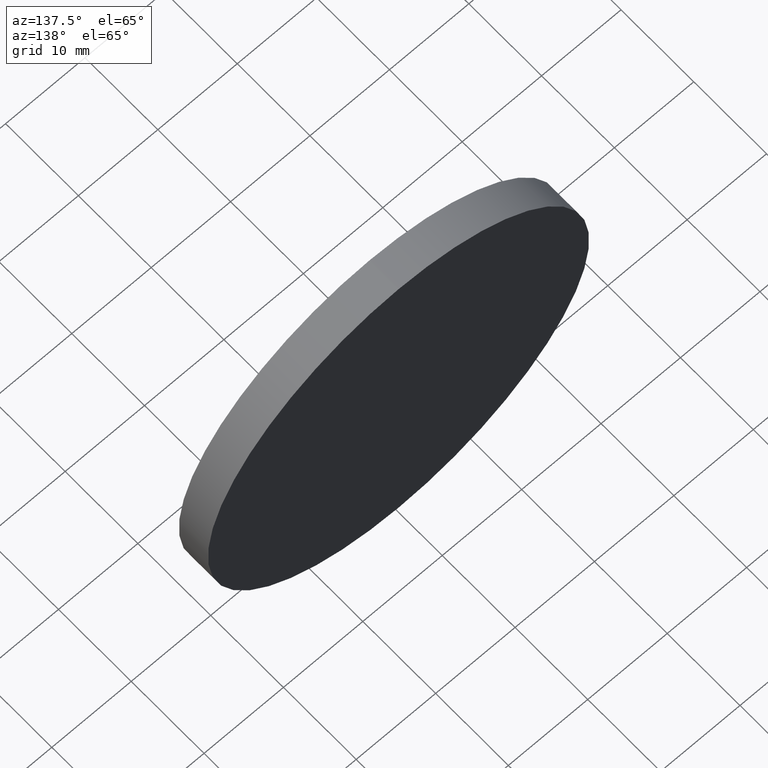
[diagram: clean part render]
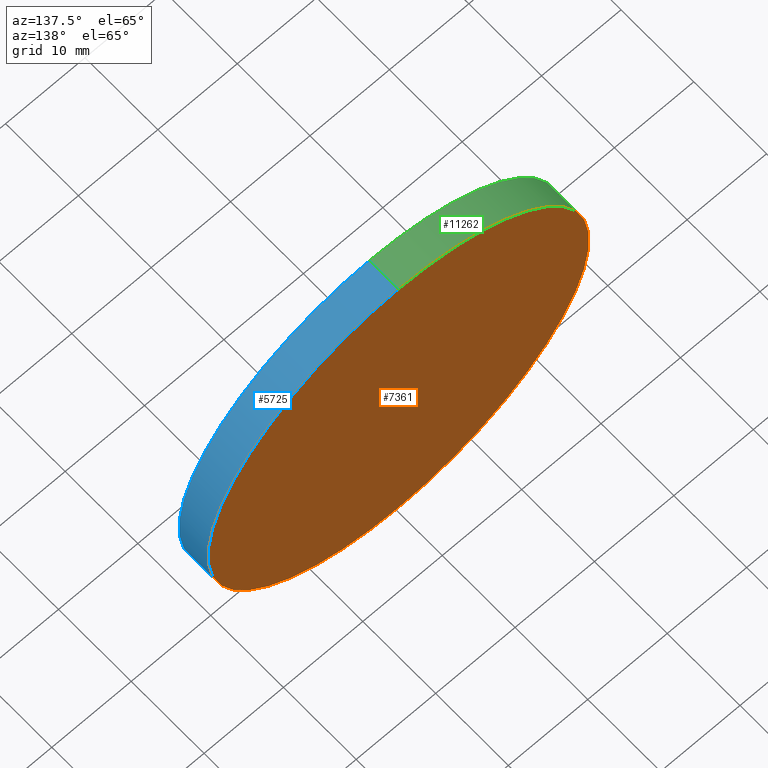
[diagram: same view with three faces highlighted in distinct colors, each labeled with its STEP entity id]
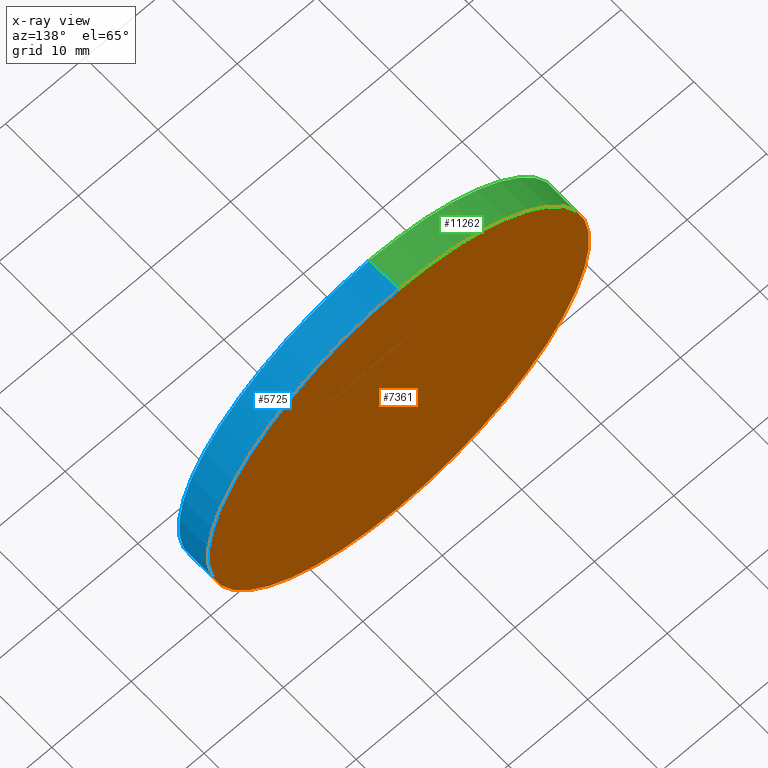
[diagram: x-ray of the same camera — body ghosted, the three highlighted faces saturated]
A machine part, auxiliary view with three faces highlighted in distinct colors.
The next image is the same camera in x-ray (body ghosted, the three faces saturated) — at least one of them is partly hidden behind the body in this view.
Their STEP definitions:

[orange] entity #7361 — the highlighted planar face has unit normal (0, 1, 0).
#288 = DIRECTION ( 'NONE',  ( 0.0000000000000000000, 1.000000000000000000, 0.0000000000000000000 ) ) ;
#672 = FACE_OUTER_BOUND ( 'NONE', #5310, .T. ) ;
#1227 = CARTESIAN_POINT ( 'NONE',  ( 0.0000000000000000000, 4.000000000000000000, 0.0000000000000000000 ) ) ;
#1413 = CIRCLE ( 'NONE', #5704, 24.00000000000000400 ) ;
#1892 = CARTESIAN_POINT ( 'NONE',  ( 0.0000000000000000000, 4.000000000000000000, -24.00000000000000400 ) ) ;
#2289 = AXIS2_PLACEMENT_3D ( 'NONE', #2824, #4774, #8815 ) ;
#2824 = CARTESIAN_POINT ( 'NONE',  ( 0.0000000000000000000, 4.000000000000000000, 0.0000000000000000000 ) ) ;
#3291 = ORIENTED_EDGE ( 'NONE', *, *, #9775, .T. ) ;
#4371 = DIRECTION ( 'NONE',  ( 0.0000000000000000000, 1.000000000000000000, 0.0000000000000000000 ) ) ;
#4774 = DIRECTION ( 'NONE',  ( 0.0000000000000000000, 1.000000000000000000, 0.0000000000000000000 ) ) ;
#5310 = EDGE_LOOP ( 'NONE', ( #5877, #3291 ) ) ;
#5426 = CIRCLE ( 'NONE', #9800, 24.00000000000000400 ) ;
#5704 = AXIS2_PLACEMENT_3D ( 'NONE', #6294, #4371, #6206 ) ;
#5877 = ORIENTED_EDGE ( 'NONE', *, *, #9333, .T. ) ;
#5981 = CARTESIAN_POINT ( 'NONE',  ( 2.939152317953648300E-015, 4.000000000000000000, 24.00000000000000400 ) ) ;
#6206 = DIRECTION ( 'NONE',  ( 0.0000000000000000000, 0.0000000000000000000, 1.000000000000000000 ) ) ;
#6294 = CARTESIAN_POINT ( 'NONE',  ( 0.0000000000000000000, 4.000000000000000000, 0.0000000000000000000 ) ) ;
#7361 = ADVANCED_FACE ( 'NONE', ( #672 ), #12796, .T. ) ;
#7615 = VERTEX_POINT ( 'NONE', #5981 ) ;
#8141 = DIRECTION ( 'NONE',  ( 0.0000000000000000000, 0.0000000000000000000, 1.000000000000000000 ) ) ;
#8815 = DIRECTION ( 'NONE',  ( 0.0000000000000000000, -0.0000000000000000000, 1.000000000000000000 ) ) ;
#9333 = EDGE_CURVE ( 'NONE', #12747, #7615, #5426, .T. ) ;
#9775 = EDGE_CURVE ( 'NONE', #7615, #12747, #1413, .T. ) ;
#9800 = AXIS2_PLACEMENT_3D ( 'NONE', #1227, #288, #8141 ) ;
#12747 = VERTEX_POINT ( 'NONE', #1892 ) ;
#12796 = PLANE ( 'NONE',  #2289 ) ;

[blue] entity #5725 — the highlighted cylindrical surface (partial cylindrical patch) has radius 24 mm, axis along (-0, -1, -0).
#28 = CARTESIAN_POINT ( 'NONE',  ( 0.0000000000000000000, 0.0000000000000000000, -24.00000000000000400 ) ) ;
#1339 = CARTESIAN_POINT ( 'NONE',  ( 0.0000000000000000000, 4.000000000000000000, -24.00000000000000400 ) ) ;
#1413 = CIRCLE ( 'NONE', #5704, 24.00000000000000400 ) ;
#1619 = EDGE_CURVE ( 'NONE', #3025, #10641, #2878, .T. ) ;
#1892 = CARTESIAN_POINT ( 'NONE',  ( 0.0000000000000000000, 4.000000000000000000, -24.00000000000000400 ) ) ;
#1897 = EDGE_LOOP ( 'NONE', ( #11427, #10269, #7255, #1920 ) ) ;
#1920 = ORIENTED_EDGE ( 'NONE', *, *, #9796, .F. ) ;
#2313 = DIRECTION ( 'NONE',  ( 0.0000000000000000000, 0.0000000000000000000, 1.000000000000000000 ) ) ;
#2878 = CIRCLE ( 'NONE', #10280, 24.00000000000000400 ) ;
#3025 = VERTEX_POINT ( 'NONE', #10613 ) ;
#3193 = DIRECTION ( 'NONE',  ( -0.0000000000000000000, -1.000000000000000000, -0.0000000000000000000 ) ) ;
#3368 = DIRECTION ( 'NONE',  ( -0.0000000000000000000, -1.000000000000000000, -0.0000000000000000000 ) ) ;
#4311 = DIRECTION ( 'NONE',  ( 0.0000000000000000000, 0.0000000000000000000, -1.000000000000000000 ) ) ;
#4371 = DIRECTION ( 'NONE',  ( 0.0000000000000000000, 1.000000000000000000, 0.0000000000000000000 ) ) ;
#4377 = EDGE_CURVE ( 'NONE', #7615, #3025, #9948, .T. ) ;
#5291 = DIRECTION ( 'NONE',  ( -0.0000000000000000000, -1.000000000000000000, -0.0000000000000000000 ) ) ;
#5704 = AXIS2_PLACEMENT_3D ( 'NONE', #6294, #4371, #6206 ) ;
#5725 = ADVANCED_FACE ( 'NONE', ( #6100 ), #12738, .T. ) ;
#5981 = CARTESIAN_POINT ( 'NONE',  ( 2.939152317953648300E-015, 4.000000000000000000, 24.00000000000000400 ) ) ;
#6100 = FACE_OUTER_BOUND ( 'NONE', #1897, .T. ) ;
#6157 = CARTESIAN_POINT ( 'NONE',  ( 2.939152317953648300E-015, 4.000000000000000000, 24.00000000000000400 ) ) ;
#6206 = DIRECTION ( 'NONE',  ( 0.0000000000000000000, 0.0000000000000000000, 1.000000000000000000 ) ) ;
#6232 = CARTESIAN_POINT ( 'NONE',  ( 0.0000000000000000000, 4.000000000000000000, 0.0000000000000000000 ) ) ;
#6255 = DIRECTION ( 'NONE',  ( 0.0000000000000000000, 1.000000000000000000, 0.0000000000000000000 ) ) ;
#6294 = CARTESIAN_POINT ( 'NONE',  ( 0.0000000000000000000, 4.000000000000000000, 0.0000000000000000000 ) ) ;
#7255 = ORIENTED_EDGE ( 'NONE', *, *, #1619, .T. ) ;
#7331 = VECTOR ( 'NONE', #3193, 1000.000000000000000 ) ;
#7615 = VERTEX_POINT ( 'NONE', #5981 ) ;
#8974 = AXIS2_PLACEMENT_3D ( 'NONE', #6232, #5291, #4311 ) ;
#9775 = EDGE_CURVE ( 'NONE', #7615, #12747, #1413, .T. ) ;
#9796 = EDGE_CURVE ( 'NONE', #12747, #10641, #11296, .T. ) ;
#9948 = LINE ( 'NONE', #6157, #7331 ) ;
#10269 = ORIENTED_EDGE ( 'NONE', *, *, #4377, .T. ) ;
#10280 = AXIS2_PLACEMENT_3D ( 'NONE', #11170, #6255, #2313 ) ;
#10613 = CARTESIAN_POINT ( 'NONE',  ( 2.939152317953648300E-015, 0.0000000000000000000, 24.00000000000000400 ) ) ;
#10641 = VERTEX_POINT ( 'NONE', #28 ) ;
#11170 = CARTESIAN_POINT ( 'NONE',  ( 0.0000000000000000000, 0.0000000000000000000, 0.0000000000000000000 ) ) ;
#11296 = LINE ( 'NONE', #1339, #12538 ) ;
#11427 = ORIENTED_EDGE ( 'NONE', *, *, #9775, .F. ) ;
#12538 = VECTOR ( 'NONE', #3368, 1000.000000000000000 ) ;
#12738 = CYLINDRICAL_SURFACE ( 'NONE', #8974, 24.00000000000000400 ) ;
#12747 = VERTEX_POINT ( 'NONE', #1892 ) ;

[green] entity #11262 — the highlighted cylindrical surface (partial cylindrical patch) has radius 24 mm, axis along (-0, -1, -0).
#28 = CARTESIAN_POINT ( 'NONE',  ( 0.0000000000000000000, 0.0000000000000000000, -24.00000000000000400 ) ) ;
#288 = DIRECTION ( 'NONE',  ( 0.0000000000000000000, 1.000000000000000000, 0.0000000000000000000 ) ) ;
#1227 = CARTESIAN_POINT ( 'NONE',  ( 0.0000000000000000000, 4.000000000000000000, 0.0000000000000000000 ) ) ;
#1296 = CIRCLE ( 'NONE', #4307, 24.00000000000000400 ) ;
#1339 = CARTESIAN_POINT ( 'NONE',  ( 0.0000000000000000000, 4.000000000000000000, -24.00000000000000400 ) ) ;
#1599 = ORIENTED_EDGE ( 'NONE', *, *, #7059, .T. ) ;
#1892 = CARTESIAN_POINT ( 'NONE',  ( 0.0000000000000000000, 4.000000000000000000, -24.00000000000000400 ) ) ;
#1904 = ORIENTED_EDGE ( 'NONE', *, *, #9796, .T. ) ;
#2179 = DIRECTION ( 'NONE',  ( 0.0000000000000000000, 0.0000000000000000000, 1.000000000000000000 ) ) ;
#3025 = VERTEX_POINT ( 'NONE', #10613 ) ;
#3193 = DIRECTION ( 'NONE',  ( -0.0000000000000000000, -1.000000000000000000, -0.0000000000000000000 ) ) ;
#3328 = DIRECTION ( 'NONE',  ( -0.0000000000000000000, -1.000000000000000000, -0.0000000000000000000 ) ) ;
#3368 = DIRECTION ( 'NONE',  ( -0.0000000000000000000, -1.000000000000000000, -0.0000000000000000000 ) ) ;
#3710 = CYLINDRICAL_SURFACE ( 'NONE', #10154, 24.00000000000000400 ) ;
#4057 = ORIENTED_EDGE ( 'NONE', *, *, #4377, .F. ) ;
#4307 = AXIS2_PLACEMENT_3D ( 'NONE', #8124, #11993, #2179 ) ;
#4362 = ORIENTED_EDGE ( 'NONE', *, *, #9333, .F. ) ;
#4377 = EDGE_CURVE ( 'NONE', #7615, #3025, #9948, .T. ) ;
#5426 = CIRCLE ( 'NONE', #9800, 24.00000000000000400 ) ;
#5981 = CARTESIAN_POINT ( 'NONE',  ( 2.939152317953648300E-015, 4.000000000000000000, 24.00000000000000400 ) ) ;
#6157 = CARTESIAN_POINT ( 'NONE',  ( 2.939152317953648300E-015, 4.000000000000000000, 24.00000000000000400 ) ) ;
#7059 = EDGE_CURVE ( 'NONE', #10641, #3025, #1296, .T. ) ;
#7331 = VECTOR ( 'NONE', #3193, 1000.000000000000000 ) ;
#7615 = VERTEX_POINT ( 'NONE', #5981 ) ;
#8020 = DIRECTION ( 'NONE',  ( 0.0000000000000000000, 0.0000000000000000000, -1.000000000000000000 ) ) ;
#8124 = CARTESIAN_POINT ( 'NONE',  ( 0.0000000000000000000, 0.0000000000000000000, 0.0000000000000000000 ) ) ;
#8141 = DIRECTION ( 'NONE',  ( 0.0000000000000000000, 0.0000000000000000000, 1.000000000000000000 ) ) ;
#8261 = EDGE_LOOP ( 'NONE', ( #4057, #4362, #1904, #1599 ) ) ;
#9333 = EDGE_CURVE ( 'NONE', #12747, #7615, #5426, .T. ) ;
#9796 = EDGE_CURVE ( 'NONE', #12747, #10641, #11296, .T. ) ;
#9800 = AXIS2_PLACEMENT_3D ( 'NONE', #1227, #288, #8141 ) ;
#9948 = LINE ( 'NONE', #6157, #7331 ) ;
#10001 = CARTESIAN_POINT ( 'NONE',  ( 0.0000000000000000000, 4.000000000000000000, 0.0000000000000000000 ) ) ;
#10154 = AXIS2_PLACEMENT_3D ( 'NONE', #10001, #3328, #8020 ) ;
#10613 = CARTESIAN_POINT ( 'NONE',  ( 2.939152317953648300E-015, 0.0000000000000000000, 24.00000000000000400 ) ) ;
#10641 = VERTEX_POINT ( 'NONE', #28 ) ;
#11262 = ADVANCED_FACE ( 'NONE', ( #11424 ), #3710, .T. ) ;
#11296 = LINE ( 'NONE', #1339, #12538 ) ;
#11424 = FACE_OUTER_BOUND ( 'NONE', #8261, .T. ) ;
#11993 = DIRECTION ( 'NONE',  ( 0.0000000000000000000, 1.000000000000000000, 0.0000000000000000000 ) ) ;
#12538 = VECTOR ( 'NONE', #3368, 1000.000000000000000 ) ;
#12747 = VERTEX_POINT ( 'NONE', #1892 ) ;